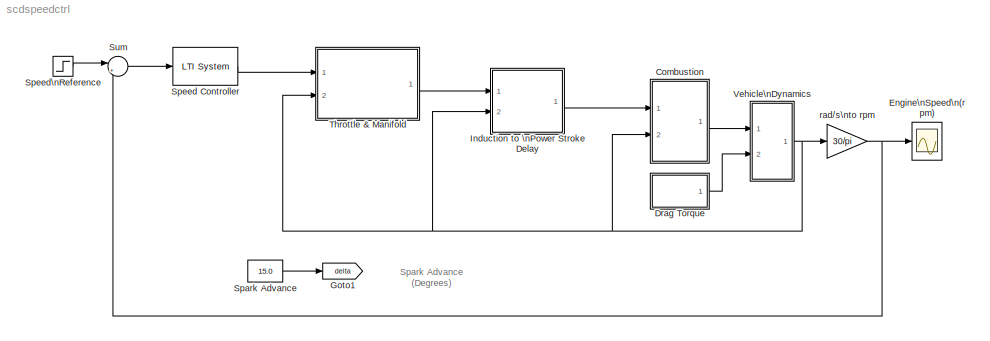
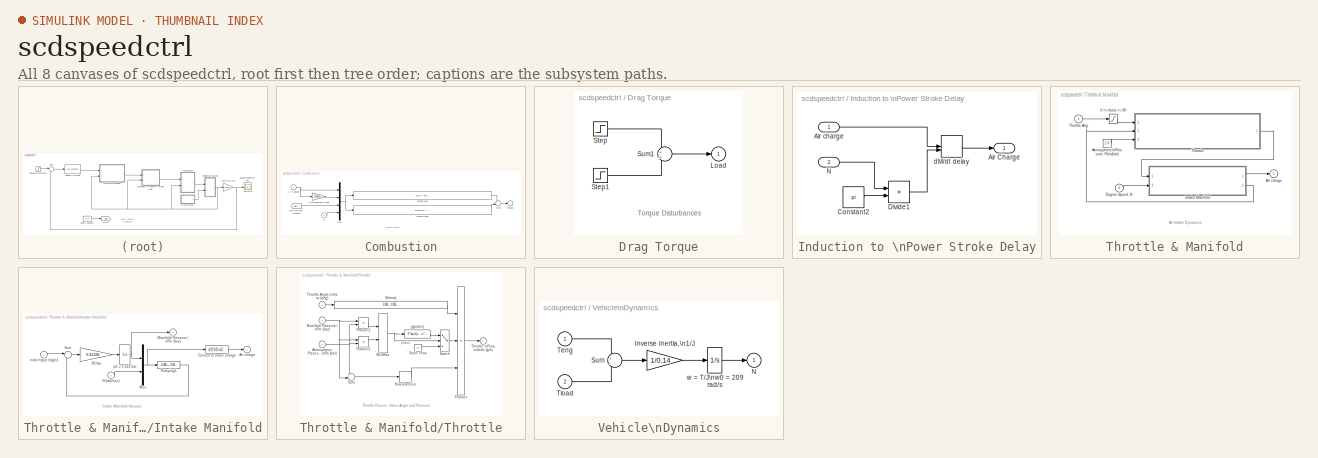
[diagram: thumbnail index - all 8 canvases of the model, root first then tree order]
MODEL scdspeedctrl
KIND model
BLOCK [SubSystem] Combustion
  MinAlgLoopOccurrences = off
  Ports = [2, 1]
  PropExecContextAcrossSSBoundary = on
  RTWSystemCode = Auto
  TreatAsAtomicUnit = off
BLOCK [Inport] Combustion/Air Charge
  IconDisplay = Port number
  LatchInput = off
BLOCK [From] Combustion/From\nSpark Advance
  CloseFcn = tagdialog Close
  DialogController = Simulink.DDGSource
  GotoTag = delta
BLOCK [Mux] Combustion/Mux
  DisplayOption = bar
  Ports = [4, 1]
BLOCK [Inport] Combustion/N
  IconDisplay = Port number
  LatchInput = off
  Port = 2
BLOCK [Gain] Combustion/Stoichiometric Fuel
  Gain = 1/14.6
BLOCK [Sum] Combustion/Sum
  IconShape = round
  Ports = [2, 1]
BLOCK [Outport] Combustion/Torque
  BusOutputAsStruct = off
  IconDisplay = Port number
  InitialOutput = 0
BLOCK [Fcn] Combustion/Torque Gen
  Expr = -181.3 + 379.36*u[1] + 21.91*u[1]/u[2] - (0.85*u[1]*u[1])/(u[2]*u[2]) + 0.26*u[3] - 0.0028*u[3]*u[3]
BLOCK [Fcn] Combustion/Torque Gen2
  Expr = 0.027*u[4] - 0.000107*u[4]*u[4] + 0.00048*u[4]*u[3] + 2.55*u[3]*u[1] - 0.05*u[3]*u[3]*u[1]
BLOCK [SubSystem] Drag Torque
  MinAlgLoopOccurrences = off
  Ports = [0, 1]
  PropExecContextAcrossSSBoundary = on
  RTWSystemCode = Auto
  TreatAsAtomicUnit = off
BLOCK [Outport] Drag Torque/Load
  BusOutputAsStruct = off
  IconDisplay = Port number
  InitialOutput = 0
BLOCK [Step] Drag Torque/Step
  After = 25
  Before = 25
  SampleTime = 0
  Time = 2
BLOCK [Step] Drag Torque/Step1
  After = 0
  SampleTime = 0
  Time = 8
BLOCK [Sum] Drag Torque/Sum1
  IconShape = round
  Ports = [2, 1]
BLOCK [Scope] Engine\nSpeed\n(rpm)
  DataFormat = Structure
  LimitDataPoints = off
  NumInputPorts = 1
  Ports = [1]
  SaveName = N
  SaveToWorkspace = on
  TickLabels = on
  TimeRange = 10
  YMax = 8000
  YMin = 0
BLOCK [Goto] Goto1
  DialogController = Simulink.DDGSource
  GotoTag = delta
  TagVisibility = global
BLOCK [SubSystem] Induction to \nPower Stroke Delay
  MinAlgLoopOccurrences = off
  Ports = [2, 1]
  PropExecContextAcrossSSBoundary = on
  RTWSystemCode = Auto
  TreatAsAtomicUnit = off
BLOCK [Outport] Induction to \nPower Stroke Delay/Air Charge
  BusOutputAsStruct = off
  IconDisplay = Port number
BLOCK [Inport] Induction to \nPower Stroke Delay/Air charge
  IconDisplay = Port number
  LatchInput = off
BLOCK [Constant] Induction to \nPower Stroke Delay/Constant2
  Value = pi
BLOCK [Product] Induction to \nPower Stroke Delay/Divide1
  InputSameDT = off
  Inputs = /*
  OutDataTypeMode = Inherit via internal rule
  OutScaling = 2^-10
  Ports = [2, 1]
  RndMeth = Floor
  SaturateOnIntegerOverflow = off
BLOCK [Inport] Induction to \nPower Stroke Delay/N
  IconDisplay = Port number
  LatchInput = off
  Port = 2
BLOCK [VariableTransportDelay] Induction to \nPower Stroke Delay/dM//dt delay
  InitialInput = 0.152
  MaximumDelay = 10
  PadeOrder = 2
  TransDelayFeedthrough = on
BLOCK [Constant] Spark Advance
  Value = 15.0
BLOCK [Reference] Speed Controller  REF=cstblocks/LTI System
  IC = 8.96
  Ports = [1, 1]
  ShowPortLabels = on
  SourceBlock = cstblocks/LTI System
  SourceType = LTI Block
  sys = ss(0,1,1,0)
BLOCK [Step] Speed\nReference
  After = 3000
  Before = 2000
  SampleTime = 0
  Time = 2
BLOCK [Sum] Sum
  IconShape = round
  InputSameDT = off
  Inputs = |+-
  OutDataTypeMode = Inherit via internal rule
  Ports = [2, 1]
  SaturateOnIntegerOverflow = off
BLOCK [SubSystem] Throttle & Manifold
  MinAlgLoopOccurrences = off
  Ports = [2, 1]
  PropExecContextAcrossSSBoundary = on
  RTWSystemCode = Auto
  TreatAsAtomicUnit = off
BLOCK [Saturate] Throttle & Manifold/0 <= theta <= 90
  LowerLimit = 0
  UpperLimit = 90
BLOCK [Outport] Throttle & Manifold/Air charge
  BusOutputAsStruct = off
  IconDisplay = Port number
  InitialOutput = 0
BLOCK [Constant] Throttle & Manifold/Atmospheric\nPressure, Pa\n(bar)
  Value = 1.0
BLOCK [Inport] Throttle & Manifold/Engine Speed, N
  IconDisplay = Port number
  LatchInput = off
  Port = 2
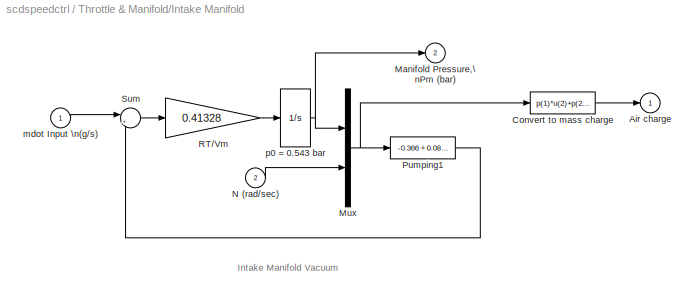
BLOCK [SubSystem] Throttle & Manifold/Intake Manifold
  MinAlgLoopOccurrences = off
  Ports = [2, 2]
  PropExecContextAcrossSSBoundary = on
  RTWSystemCode = Auto
  TreatAsAtomicUnit = off
BLOCK [Outport] Throttle & Manifold/Intake Manifold/Air charge
  BusOutputAsStruct = off
  IconDisplay = Port number
  InitialOutput = 0
BLOCK [Fcn] Throttle & Manifold/Intake Manifold/Convert to mass charge
  Expr = p(1)*u(2)+p(2)*u(1)+p(3)*u(1)*u(1)+p(4)*u(1)*u(2)+p(5)
BLOCK [Outport] Throttle & Manifold/Intake Manifold/Manifold Pressure,\nPm (bar)
  BusOutputAsStruct = off
  IconDisplay = Port number
  InitialOutput = 0
  Port = 2
BLOCK [Mux] Throttle & Manifold/Intake Manifold/Mux
  DisplayOption = bar
  Inputs = 2
  Ports = [2, 1]
BLOCK [Inport] Throttle & Manifold/Intake Manifold/N (rad//sec)
  IconDisplay = Port number
  LatchInput = off
  Port = 2
BLOCK [Fcn] Throttle & Manifold/Intake Manifold/Pumping1
  Expr = -0.366 + 0.08979*u[1]*u[2] - 0.0337*u[2]*u[1]*u[1] + 0.0001*u[1]*u[2]*u[2]
BLOCK [Gain] Throttle & Manifold/Intake Manifold/RT//Vm
  Gain = 0.41328
BLOCK [Sum] Throttle & Manifold/Intake Manifold/Sum
  IconShape = round
  Inputs = |+-
  Ports = [2, 1]
BLOCK [Inport] Throttle & Manifold/Intake Manifold/mdot Input \n(g//s)
  IconDisplay = Port number
  LatchInput = off
BLOCK [Integrator] Throttle & Manifold/Intake Manifold/p0 = 0.543 bar
  InitialCondition = .543
  Ports = [1, 1]
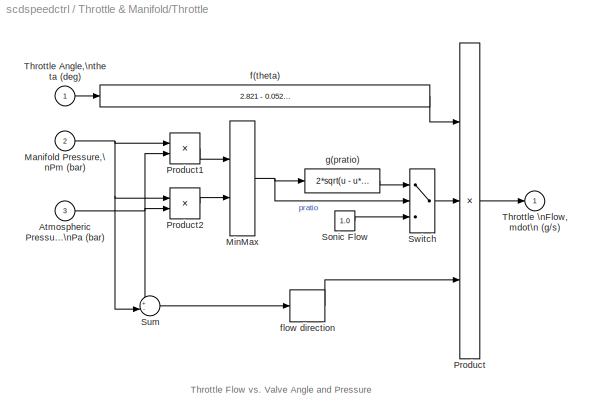
BLOCK [SubSystem] Throttle & Manifold/Throttle
  MinAlgLoopOccurrences = off
  Ports = [3, 1]
  PropExecContextAcrossSSBoundary = on
  RTWSystemCode = Auto
  TreatAsAtomicUnit = off
BLOCK [Inport] Throttle & Manifold/Throttle Ang.
  IconDisplay = Port number
  LatchInput = off
BLOCK [Inport] Throttle & Manifold/Throttle/Atmospheric Pressure,\nPa (bar) 
  IconDisplay = Port number
  LatchInput = off
  Port = 3
BLOCK [Inport] Throttle & Manifold/Throttle/Manifold Pressure,\nPm (bar)
  IconDisplay = Port number
  LatchInput = off
  Port = 2
BLOCK [MinMax] Throttle & Manifold/Throttle/MinMax
  Function = min
  Inputs = 2
  Ports = [2, 1]
BLOCK [Product] Throttle & Manifold/Throttle/Product
  Inputs = 3
  Ports = [3, 1]
BLOCK [Product] Throttle & Manifold/Throttle/Product1
  Inputs = */
  Ports = [2, 1]
BLOCK [Product] Throttle & Manifold/Throttle/Product2
  Inputs = /*
  Ports = [2, 1]
BLOCK [Constant] Throttle & Manifold/Throttle/Sonic Flow 
  Value = 1.0
BLOCK [Sum] Throttle & Manifold/Throttle/Sum
  IconShape = round
  Inputs = +-|
  Ports = [2, 1]
BLOCK [Switch] Throttle & Manifold/Throttle/Switch
  Threshold = 0.5
BLOCK [Inport] Throttle & Manifold/Throttle/Throttle Angle,\ntheta (deg)
  IconDisplay = Port number
  LatchInput = off
BLOCK [Outport] Throttle & Manifold/Throttle/Throttle \nFlow, mdot\n (g//s)
  BusOutputAsStruct = off
  IconDisplay = Port number
  InitialOutput = 0
BLOCK [Fcn] Throttle & Manifold/Throttle/f(theta)
  Expr = 2.821 - 0.05231*u + 0.10299*u*u - 0.00063*u*u*u
BLOCK [Signum] Throttle & Manifold/Throttle/flow direction
BLOCK [Fcn] Throttle & Manifold/Throttle/g(pratio)
  Expr = 2*sqrt(u - u*u)
BLOCK [SubSystem] Vehicle\nDynamics
  MinAlgLoopOccurrences = off
  Ports = [2, 1]
  PropExecContextAcrossSSBoundary = on
  RTWSystemCode = Auto
  TreatAsAtomicUnit = off
BLOCK [Gain] Vehicle\nDynamics/Inverse Inertia,\n1//J
  Gain = 1/0.14
BLOCK [Outport] Vehicle\nDynamics/N
  BusOutputAsStruct = off
  IconDisplay = Port number
  InitialOutput = 0
BLOCK [Sum] Vehicle\nDynamics/Sum
  IconShape = round
  Inputs = +-
  Ports = [2, 1]
BLOCK [Inport] Vehicle\nDynamics/Teng
  IconDisplay = Port number
  LatchInput = off
BLOCK [Inport] Vehicle\nDynamics/Tload
  IconDisplay = Port number
  LatchInput = off
  Port = 2
BLOCK [Integrator] Vehicle\nDynamics/w = T//J\nw0 = 209 rad//s
  InitialCondition = 209.48
  Ports = [1, 1]
BLOCK [Gain] rad//s\nto rpm
  Gain = 30/pi
ANNOTATION (root): Spark Advance\n(Degrees)
ANNOTATION Combustion: Engine Torque
ANNOTATION Drag Torque: Torque Disturbances
ANNOTATION Throttle & Manifold: Air Intake Dynamics
ANNOTATION Throttle & Manifold/Intake Manifold: Intake Manifold Vacuum
ANNOTATION Throttle & Manifold/Throttle: Throttle Flow vs. Valve Angle and Pressure
NET Combustion/Air Charge:1 -> Combustion/Mux:1, Combustion/Stoichiometric Fuel:1
LINE Combustion/From\nSpark Advance:1 -> Combustion/Mux:3
NET Combustion/Mux:1 -> Combustion/Torque Gen2:1, Combustion/Torque Gen:1
LINE Combustion/N:1 -> Combustion/Mux:4
LINE Combustion/Stoichiometric Fuel:1 -> Combustion/Mux:2
LINE Combustion/Sum:1 -> Combustion/Torque:1
LINE Combustion/Torque Gen2:1 -> Combustion/Sum:2
LINE Combustion/Torque Gen:1 -> Combustion/Sum:1
LINE Combustion:1 -> Vehicle\nDynamics:1
LINE Drag Torque/Step1:1 -> Drag Torque/Sum1:2
LINE Drag Torque/Step:1 -> Drag Torque/Sum1:1
LINE Drag Torque/Sum1:1 -> Drag Torque/Load:1
LINE Drag Torque:1 -> Vehicle\nDynamics:2
LINE Induction to \nPower Stroke Delay/Air charge:1 -> Induction to \nPower Stroke Delay/dM//dt delay:1
LINE Induction to \nPower Stroke Delay/Constant2:1 -> Induction to \nPower Stroke Delay/Divide1:2
LINE Induction to \nPower Stroke Delay/Divide1:1 -> Induction to \nPower Stroke Delay/dM//dt delay:2
LINE Induction to \nPower Stroke Delay/N:1 -> Induction to \nPower Stroke Delay/Divide1:1
LINE Induction to \nPower Stroke Delay/dM//dt delay:1 -> Induction to \nPower Stroke Delay/Air Charge:1
LINE Induction to \nPower Stroke Delay:1 -> Combustion:1
LINE Spark Advance:1 -> Goto1:1
LINE Speed Controller:1 -> Throttle & Manifold:1
LINE Speed\nReference:1 -> Sum:1
LINE Sum:1 -> Speed Controller:1
LINE Throttle & Manifold/0 <= theta <= 90:1 -> Throttle & Manifold/Throttle:1
LINE Throttle & Manifold/Atmospheric\nPressure, Pa\n(bar):1 -> Throttle & Manifold/Throttle:3
LINE Throttle & Manifold/Engine Speed, N:1 -> Throttle & Manifold/Intake Manifold:2
LINE Throttle & Manifold/Intake Manifold/Convert to mass charge:1 -> Throttle & Manifold/Intake Manifold/Air charge:1
NET Throttle & Manifold/Intake Manifold/Mux:1 -> Throttle & Manifold/Intake Manifold/Convert to mass charge:1, Throttle & Manifold/Intake Manifold/Pumping1:1
LINE Throttle & Manifold/Intake Manifold/N (rad//sec):1 -> Throttle & Manifold/Intake Manifold/Mux:2
LINE Throttle & Manifold/Intake Manifold/Pumping1:1 -> Throttle & Manifold/Intake Manifold/Sum:2
LINE Throttle & Manifold/Intake Manifold/RT//Vm:1 -> Throttle & Manifold/Intake Manifold/p0 = 0.543 bar:1
LINE Throttle & Manifold/Intake Manifold/Sum:1 -> Throttle & Manifold/Intake Manifold/RT//Vm:1
LINE Throttle & Manifold/Intake Manifold/mdot Input \n(g//s):1 -> Throttle & Manifold/Intake Manifold/Sum:1
NET Throttle & Manifold/Intake Manifold/p0 = 0.543 bar:1 -> Throttle & Manifold/Intake Manifold/Manifold Pressure,\nPm (bar):1, Throttle & Manifold/Intake Manifold/Mux:1
LINE Throttle & Manifold/Intake Manifold:1 -> Throttle & Manifold/Air charge:1
LINE Throttle & Manifold/Intake Manifold:2 -> Throttle & Manifold/Throttle:2
LINE Throttle & Manifold/Throttle Ang.:1 -> Throttle & Manifold/0 <= theta <= 90:1
NET Throttle & Manifold/Throttle/Atmospheric Pressure,\nPa (bar) :1 -> Throttle & Manifold/Throttle/Product1:2, Throttle & Manifold/Throttle/Product2:2, Throttle & Manifold/Throttle/Sum:1
NET Throttle & Manifold/Throttle/Manifold Pressure,\nPm (bar):1 -> Throttle & Manifold/Throttle/Product1:1, Throttle & Manifold/Throttle/Product2:1, Throttle & Manifold/Throttle/Sum:2
NET Throttle & Manifold/Throttle/MinMax:1 -> Throttle & Manifold/Throttle/Switch:2, Throttle & Manifold/Throttle/g(pratio):1
LINE Throttle & Manifold/Throttle/Product1:1 -> Throttle & Manifold/Throttle/MinMax:1
LINE Throttle & Manifold/Throttle/Product2:1 -> Throttle & Manifold/Throttle/MinMax:2
LINE Throttle & Manifold/Throttle/Product:1 -> Throttle & Manifold/Throttle/Throttle \nFlow, mdot\n (g//s):1
LINE Throttle & Manifold/Throttle/Sonic Flow :1 -> Throttle & Manifold/Throttle/Switch:3
LINE Throttle & Manifold/Throttle/Sum:1 -> Throttle & Manifold/Throttle/flow direction:1
LINE Throttle & Manifold/Throttle/Switch:1 -> Throttle & Manifold/Throttle/Product:2
LINE Throttle & Manifold/Throttle/Throttle Angle,\ntheta (deg):1 -> Throttle & Manifold/Throttle/f(theta):1
LINE Throttle & Manifold/Throttle/f(theta):1 -> Throttle & Manifold/Throttle/Product:1
LINE Throttle & Manifold/Throttle/flow direction:1 -> Throttle & Manifold/Throttle/Product:3
LINE Throttle & Manifold/Throttle/g(pratio):1 -> Throttle & Manifold/Throttle/Switch:1
LINE Throttle & Manifold/Throttle:1 -> Throttle & Manifold/Intake Manifold:1
LINE Throttle & Manifold:1 -> Induction to \nPower Stroke Delay:1
LINE Vehicle\nDynamics/Inverse Inertia,\n1//J:1 -> Vehicle\nDynamics/w = T//J\nw0 = 209 rad//s:1
LINE Vehicle\nDynamics/Sum:1 -> Vehicle\nDynamics/Inverse Inertia,\n1//J:1
LINE Vehicle\nDynamics/Teng:1 -> Vehicle\nDynamics/Sum:1
LINE Vehicle\nDynamics/Tload:1 -> Vehicle\nDynamics/Sum:2
LINE Vehicle\nDynamics/w = T//J\nw0 = 209 rad//s:1 -> Vehicle\nDynamics/N:1
NET Vehicle\nDynamics:1 -> Combustion:2, Induction to \nPower Stroke Delay:2, Throttle & Manifold:2, rad//s\nto rpm:1
NET rad//s\nto rpm:1 -> Engine\nSpeed\n(rpm):1, Sum:2
note: NET lines group one-source signal fan-out (src -> all destinations, sorted); 1:1 wires keep LINE
